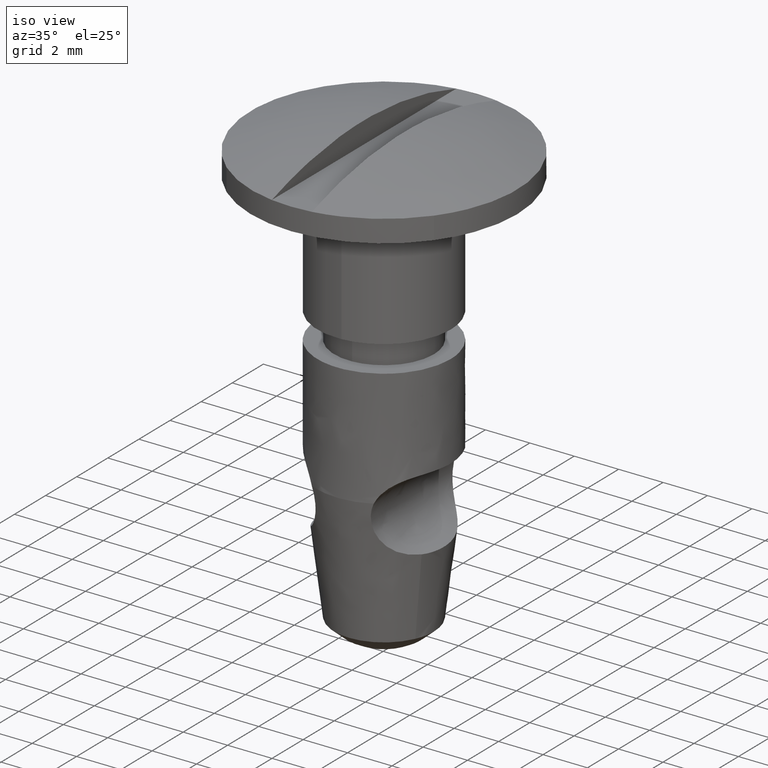
[diagram: clean part render]
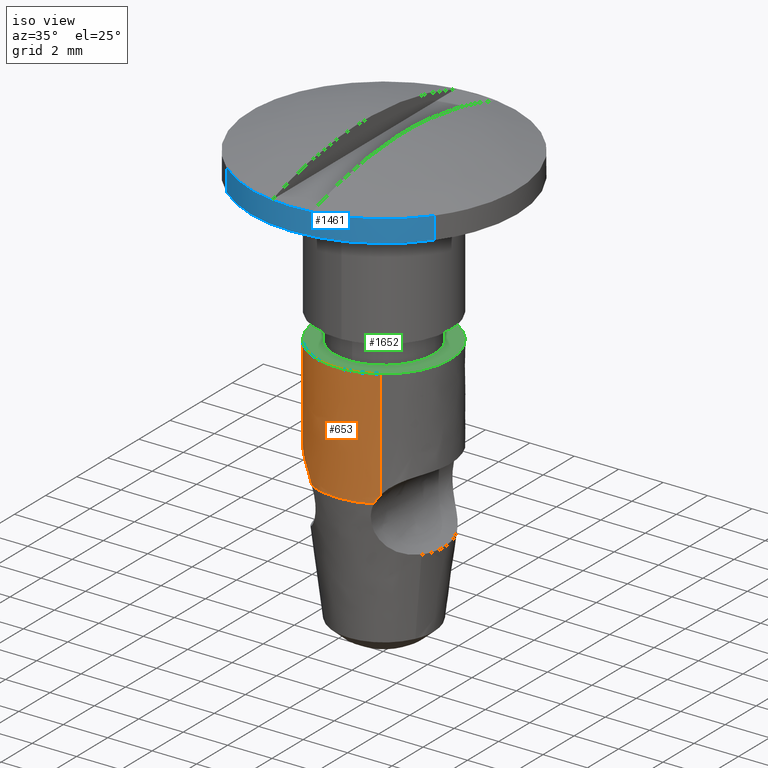
[diagram: same view with three faces highlighted in distinct colors, each labeled with its STEP entity id]
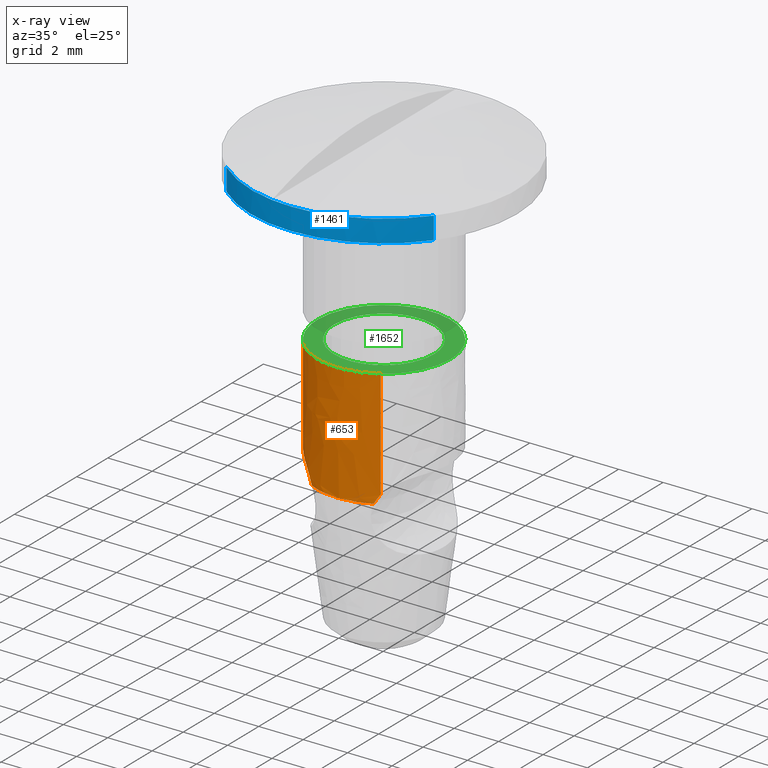
[diagram: x-ray of the same camera — body ghosted, the three highlighted faces saturated]
A machine part, iso view with three faces highlighted in distinct colors.
The next image is the same camera in x-ray (body ghosted, the three faces saturated) — at least one of them is partly hidden behind the body in this view.
Their STEP definitions:

[orange] entity #653 — the highlighted face is a freeform B-spline surface patch.
#265=CARTESIAN_POINT('',(1.436199679755612,-2.655354154192300,7.000002687652030));
#266=VERTEX_POINT('',#265);
#306=CARTESIAN_POINT('',(-1.355999679755594,-2.655354154192300,7.000002687652030));
#307=VERTEX_POINT('',#306);
#308=CARTESIAN_POINT('',(1.436199679755611,-2.655354154192300,7.000002687652030));
#309=CARTESIAN_POINT('',(0.040100000000009,-3.389378394513105,7.000002687652030));
#310=CARTESIAN_POINT('',(-1.355999679755593,-2.655354154192299,7.000002687652030));
#318=(BOUNDED_CURVE()B_SPLINE_CURVE(2,(#308,#309,#310),.UNSPECIFIED.,.F.,.U.)CURVE()GEOMETRIC_REPRESENTATION_ITEM()QUASI_UNIFORM_CURVE()RATIONAL_B_SPLINE_CURVE((1.0,0.885118051397433,1.0))REPRESENTATION_ITEM(''));
#319=EDGE_CURVE('',#266,#307,#318,.T.);
#416=CARTESIAN_POINT('',(-2.490075251433803,-1.611897390353663,12.299999999986580));
#417=VERTEX_POINT('',#416);
#450=CARTESIAN_POINT('',(1.651997383093868,-2.530175256058806,12.300000000000001));
#451=VERTEX_POINT('',#450);
#465=CARTESIAN_POINT('',(1.651998877338846,-2.530174416879400,7.365681103489733));
#466=VERTEX_POINT('',#465);
#467=CARTESIAN_POINT('',(1.651997383093868,-2.530175256058806,12.300000000000001));
#468=CARTESIAN_POINT('',(1.651998877338846,-2.530174416879400,7.365681103489733));
#469=QUASI_UNIFORM_CURVE('',1,(#467,#468),.UNSPECIFIED.,.F.,.U.);
#470=EDGE_CURVE('',#451,#466,#469,.T.);
#532=CARTESIAN_POINT('',(-2.490070795529496,-1.611897240274488,7.985745524091885));
#533=VERTEX_POINT('',#532);
#583=CARTESIAN_POINT('',(-2.490075251433803,-1.611897390353663,12.299999999986580));
#584=CARTESIAN_POINT('',(-2.490070795529496,-1.611897240274488,7.985745524091885));
#585=QUASI_UNIFORM_CURVE('',1,(#583,#584),.UNSPECIFIED.,.F.,.U.);
#586=EDGE_CURVE('',#417,#533,#585,.T.);
#591=CARTESIAN_POINT('',(1.651998825040480,-2.530174337438657,12.432499932808700));
#592=CARTESIAN_POINT('',(-0.878175512398177,-4.142073162479127,12.432499932808701));
#593=CARTESIAN_POINT('',(-2.490074337438648,-1.611898825040470,12.432499932808700));
#594=CARTESIAN_POINT('',(1.651998825040480,-2.530174337438657,6.864190256523112));
#595=CARTESIAN_POINT('',(-0.878175512398177,-4.142073162479127,6.864190256523112));
#596=CARTESIAN_POINT('',(-2.490074337438648,-1.611898825040470,6.864190256523112));
#604=(BOUNDED_SURFACE()B_SPLINE_SURFACE(2,1,((#591,#594),(#592,#595),(#593,#596)),.UNSPECIFIED.,.F.,.F.,.U.)B_SPLINE_SURFACE_WITH_KNOTS((3,3),(2,2),(0.0,4.970562748477139),(0.0,5.568309676285592),.UNSPECIFIED.)GEOMETRIC_REPRESENTATION_ITEM()RATIONAL_B_SPLINE_SURFACE(((1.0,1.0),(0.707106781186548,0.707106781186548),(1.0,1.0)))REPRESENTATION_ITEM('')SURFACE());
#605=CARTESIAN_POINT('',(1.651997383093869,-2.530175256058806,12.299999999999997));
#606=CARTESIAN_POINT('',(0.914519331283239,-3.000000000000000,12.300000000000002));
#607=CARTESIAN_POINT('',(0.040100000000010,-3.0,12.300000000000001));
#608=CARTESIAN_POINT('',(-1.605757466425573,-3.000000000000000,12.299999999999999));
#609=CARTESIAN_POINT('',(-2.490075251433803,-1.611897390353663,12.299999999986580));
#617=(BOUNDED_CURVE()B_SPLINE_CURVE(2,(#605,#606,#607,#608,#609),.UNSPECIFIED.,.F.,.U.)B_SPLINE_CURVE_WITH_KNOTS((3,2,3),(0.658050010308536,0.750000000000000,0.908050009870401),.UNSPECIFIED.)CURVE()GEOMETRIC_REPRESENTATION_ITEM()RATIONAL_B_SPLINE_CURVE((0.863791092824274,0.892273886197614,1.0,0.814832895502241,0.863791092552838))REPRESENTATION_ITEM(''));
#618=EDGE_CURVE('',#451,#417,#617,.T.);
#619=ORIENTED_EDGE('',*,*,#618,.T.);
#620=ORIENTED_EDGE('',*,*,#586,.T.);
#621=CARTESIAN_POINT('',(-2.490070795529496,-1.611897240274488,7.985745524091885));
#622=CARTESIAN_POINT('',(-2.471371589879328,-1.641250297689568,7.980534181014142));
#623=CARTESIAN_POINT('',(-2.452211994885147,-1.670206959317097,7.974860745651576));
#624=CARTESIAN_POINT('',(-2.348348053220212,-1.821408018895397,7.942046337108722));
#625=CARTESIAN_POINT('',(-2.256607853066650,-1.935363493594797,7.906190836284114));
#626=CARTESIAN_POINT('',(-2.110613616525253,-2.092741272855896,7.831077219077868));
#627=CARTESIAN_POINT('',(-2.060348526775664,-2.143086176940654,7.802277595823036));
#628=CARTESIAN_POINT('',(-1.960383156226368,-2.236686726990403,7.737705814627326));
#629=CARTESIAN_POINT('',(-1.910399047278273,-2.280275947934215,7.701815028682393));
#630=CARTESIAN_POINT('',(-1.811400428555783,-2.361365953631257,7.621925709496213));
#631=CARTESIAN_POINT('',(-1.762291066488275,-2.398932964226397,7.577839286375040));
#632=CARTESIAN_POINT('',(-1.666520727694371,-2.467982330041863,7.480809793977452));
#633=CARTESIAN_POINT('',(-1.620887630670567,-2.498745743948338,7.428915247276017));
#634=CARTESIAN_POINT('',(-1.534929450467104,-2.553799283716591,7.318265186110152));
#635=CARTESIAN_POINT('',(-1.494600030259165,-2.578089179289768,7.259512727527675));
#636=CARTESIAN_POINT('',(-1.420157572071164,-2.620972021809444,7.134843194923541));
#637=CARTESIAN_POINT('',(-1.385949933290765,-2.639607399368466,7.068626636454519));
#638=CARTESIAN_POINT('',(-1.355999679755594,-2.655354154192300,7.000002687652030));
#639=B_SPLINE_CURVE_WITH_KNOTS('',3,(#621,#622,#623,#624,#625,#626,#627,#628,#629,#630,#631,#632,#633,#634,#635,#636,#637,#638),.UNSPECIFIED.,.F.,.U.,(4,2,2,2,2,2,2,2,4),(0.735537932687883,0.749999999999999,0.812499999999999,0.843749999999999,0.874999999999999,0.906249999999999,0.937500000000000,0.968750000000000,1.0),.UNSPECIFIED.);
#640=EDGE_CURVE('',#533,#307,#639,.T.);
#641=ORIENTED_EDGE('',*,*,#640,.T.);
#642=ORIENTED_EDGE('',*,*,#319,.F.);
#643=CARTESIAN_POINT('',(1.436199679755606,-2.655354154192303,7.000002687652033));
#644=CARTESIAN_POINT('',(1.494505680786483,-2.624698737008679,7.133597908606518));
#645=CARTESIAN_POINT('',(1.567307545690643,-2.584135832380586,7.255378046345860));
#646=CARTESIAN_POINT('',(1.651998877338846,-2.530174416879400,7.365681103489733));
#647=B_SPLINE_CURVE_WITH_KNOTS('',3,(#643,#644,#645,#646),.UNSPECIFIED.,.F.,.U.,(4,4),(0.0,0.061208604972570),.UNSPECIFIED.);
#648=EDGE_CURVE('',#266,#466,#647,.T.);
#649=ORIENTED_EDGE('',*,*,#648,.T.);
#650=ORIENTED_EDGE('',*,*,#470,.F.);
#651=EDGE_LOOP('',(#619,#620,#641,#642,#649,#650));
#652=FACE_OUTER_BOUND('',#651,.T.);
#653=ADVANCED_FACE('',(#652),#604,.T.);

[blue] entity #1461 — the highlighted face is a freeform B-spline surface patch.
#1238=CARTESIAN_POINT('',(-3.849064807957262,-4.568850741329384,19.000000000000039));
#1239=VERTEX_POINT('',#1238);
#1255=CARTESIAN_POINT('',(-3.849064346135990,-4.568851134447545,20.0));
#1256=VERTEX_POINT('',#1255);
#1257=CARTESIAN_POINT('',(-3.849064346135990,-4.568851134447545,20.0));
#1258=CARTESIAN_POINT('',(-3.849064807957262,-4.568850741329384,19.000000000000039));
#1259=QUASI_UNIFORM_CURVE('',1,(#1257,#1258),.UNSPECIFIED.,.F.,.U.);
#1260=EDGE_CURVE('',#1256,#1239,#1259,.T.);
#1324=CARTESIAN_POINT('',(4.823902582848771,-3.621495940675485,20.0));
#1325=VERTEX_POINT('',#1324);
#1341=CARTESIAN_POINT('',(4.823902228879893,-3.621496408249474,18.999999999999989));
#1342=VERTEX_POINT('',#1341);
#1343=CARTESIAN_POINT('',(4.823902582848771,-3.621495940675485,20.0));
#1344=CARTESIAN_POINT('',(4.823902228879893,-3.621496408249474,18.999999999999989));
#1345=QUASI_UNIFORM_CURVE('',1,(#1343,#1344),.UNSPECIFIED.,.F.,.U.);
#1346=EDGE_CURVE('',#1325,#1342,#1345,.T.);
#1381=CARTESIAN_POINT('',(4.823902153273168,-3.621496508121895,20.024999999999999));
#1382=CARTESIAN_POINT('',(1.202405645151273,-8.405298661395054,20.025000000000009));
#1383=CARTESIAN_POINT('',(-3.581396508121886,-4.783802153273158,20.024999999999999));
#1384=CARTESIAN_POINT('',(-3.718306870488151,-4.680156479110843,20.025000000000006));
#1385=CARTESIAN_POINT('',(-3.849065401338031,-4.568850236223016,20.025000000000006));
#1386=CARTESIAN_POINT('',(4.823902153273168,-3.621496508121895,18.974374999999998));
#1387=CARTESIAN_POINT('',(1.202405645151273,-8.405298661395054,18.974375000000002));
#1388=CARTESIAN_POINT('',(-3.581396508121886,-4.783802153273158,18.974374999999998));
#1389=CARTESIAN_POINT('',(-3.718306870488151,-4.680156479110843,18.974375000000002));
#1390=CARTESIAN_POINT('',(-3.849065401338031,-4.568850236223016,18.974374999999995));
#1398=(BOUNDED_SURFACE()B_SPLINE_SURFACE(2,1,((#1381,#1386),(#1382,#1387),(#1383,#1388),(#1384,#1389),(#1385,#1390)),.UNSPECIFIED.,.F.,.F.,.U.)B_SPLINE_SURFACE_WITH_KNOTS((3,2,3),(2,2),(0.0,9.941125496954280,10.338770516832451),(0.0,1.0),.UNSPECIFIED.)GEOMETRIC_REPRESENTATION_ITEM()RATIONAL_B_SPLINE_SURFACE(((1.0,1.0),(0.707106781186548,0.707106781186548),(1.0,1.0),(0.988284271247462,0.988284271247462),(0.977505800795127,0.977505800795127)))REPRESENTATION_ITEM('')SURFACE());
#1399=CARTESIAN_POINT('',(4.823902228879893,-3.621496408249473,18.999999999999989));
#1400=CARTESIAN_POINT('',(3.023296470379494,-6.000000000000001,19.0));
#1401=CARTESIAN_POINT('',(0.040100000000010,-6.0,19.0));
#1402=CARTESIAN_POINT('',(-2.167801761823784,-6.0,19.000000000000004));
#1403=CARTESIAN_POINT('',(-3.849064807957261,-4.568850741329384,19.000000000000043));
#1411=(BOUNDED_CURVE()B_SPLINE_CURVE(2,(#1399,#1400,#1401,#1402,#1403),.UNSPECIFIED.,.F.,.U.)B_SPLINE_CURVE_WITH_KNOTS((3,2,3),(0.604233580925152,0.750000000000000,0.862894108903073),.UNSPECIFIED.)CURVE()GEOMETRIC_REPRESENTATION_ITEM()RATIONAL_B_SPLINE_CURVE((0.857595262288189,0.829224017289028,1.0,0.867736324233210,0.854926966993914))REPRESENTATION_ITEM(''));
#1412=EDGE_CURVE('',#1342,#1239,#1411,.T.);
#1413=ORIENTED_EDGE('',*,*,#1412,.F.);
#1414=ORIENTED_EDGE('',*,*,#1346,.F.);
#1415=CARTESIAN_POINT('',(0.940100000000000,-5.932115979985561,20.0));
#1416=VERTEX_POINT('',#1415);
#1417=CARTESIAN_POINT('',(4.823902582848771,-3.621495940675485,20.000000000000004));
#1418=CARTESIAN_POINT('',(3.351666585798613,-5.566241486880315,19.999999999999996));
#1419=CARTESIAN_POINT('',(0.940100000000002,-5.932115979985558,20.0));
#1427=(BOUNDED_CURVE()B_SPLINE_CURVE(2,(#1417,#1418,#1419),.UNSPECIFIED.,.F.,.U.)B_SPLINE_CURVE_WITH_KNOTS((3,3),(0.729047944628527,1.0),.UNSPECIFIED.)CURVE()GEOMETRIC_REPRESENTATION_ITEM()RATIONAL_B_SPLINE_CURVE((0.879992644349418,0.869015026695382,1.0))REPRESENTATION_ITEM(''));
#1428=EDGE_CURVE('',#1325,#1416,#1427,.T.);
#1429=ORIENTED_EDGE('',*,*,#1428,.T.);
#1430=CARTESIAN_POINT('',(-0.859900000000000,-5.932115979985561,20.0));
#1431=VERTEX_POINT('',#1430);
#1432=CARTESIAN_POINT('',(0.940100000000002,-5.932115979985558,20.0));
#1433=CARTESIAN_POINT('',(0.040100000000005,-6.068660849090083,20.000000000000004));
#1434=CARTESIAN_POINT('',(-0.859899999999997,-5.932115979985555,20.0));
#1442=(BOUNDED_CURVE()B_SPLINE_CURVE(2,(#1432,#1433,#1434),.UNSPECIFIED.,.F.,.U.)CURVE()GEOMETRIC_REPRESENTATION_ITEM()QUASI_UNIFORM_CURVE()RATIONAL_B_SPLINE_CURVE((1.0,0.988685996664259,1.0))REPRESENTATION_ITEM(''));
#1443=EDGE_CURVE('',#1416,#1431,#1442,.T.);
#1444=ORIENTED_EDGE('',*,*,#1443,.T.);
#1445=CARTESIAN_POINT('',(-0.859899999999997,-5.932115979985555,20.0));
#1446=CARTESIAN_POINT('',(-2.548513000239269,-5.675925489890139,20.000000000000004));
#1447=CARTESIAN_POINT('',(-3.849064346135990,-4.568851134447546,20.0));
#1455=(BOUNDED_CURVE()B_SPLINE_CURVE(2,(#1445,#1446,#1447),.UNSPECIFIED.,.F.,.U.)B_SPLINE_CURVE_WITH_KNOTS((3,3),(0.0,0.197478951576254),.UNSPECIFIED.)CURVE()GEOMETRIC_REPRESENTATION_ITEM()RATIONAL_B_SPLINE_CURVE((1.0,0.904533755372416,0.884477806344742))REPRESENTATION_ITEM(''));
#1456=EDGE_CURVE('',#1431,#1256,#1455,.T.);
#1457=ORIENTED_EDGE('',*,*,#1456,.T.);
#1458=ORIENTED_EDGE('',*,*,#1260,.T.);
#1459=EDGE_LOOP('',(#1413,#1414,#1429,#1444,#1457,#1458));
#1460=FACE_OUTER_BOUND('',#1459,.T.);
#1461=ADVANCED_FACE('',(#1460),#1398,.T.);

[green] entity #1652 — the highlighted face is a freeform B-spline surface patch.
#416=CARTESIAN_POINT('',(-2.490075251433803,-1.611897390353663,12.299999999986580));
#417=VERTEX_POINT('',#416);
#418=CARTESIAN_POINT('',(-2.959899999999990,0.0,12.300000000000001));
#419=VERTEX_POINT('',#418);
#420=CARTESIAN_POINT('',(-2.490075251433803,-1.611897390353663,12.299999999986580));
#421=CARTESIAN_POINT('',(-2.959899999999990,-0.874419335952808,12.299999999999997));
#422=CARTESIAN_POINT('',(-2.959899999999990,0.0,12.300000000000001));
#430=(BOUNDED_CURVE()B_SPLINE_CURVE(2,(#420,#421,#422),.UNSPECIFIED.,.F.,.U.)B_SPLINE_CURVE_WITH_KNOTS((3,3),(0.908050009870401,1.0),.UNSPECIFIED.)CURVE()GEOMETRIC_REPRESENTATION_ITEM()RATIONAL_B_SPLINE_CURVE((0.863791092552838,0.892273885684307,1.0))REPRESENTATION_ITEM(''));
#431=EDGE_CURVE('',#417,#419,#430,.T.);
#433=CARTESIAN_POINT('',(3.040100000000010,0.0,12.300000000000001));
#434=VERTEX_POINT('',#433);
#435=CARTESIAN_POINT('',(-2.959899999999990,0.0,12.300000000000001));
#436=CARTESIAN_POINT('',(-2.959899999999991,3.0,12.300000000000002));
#437=CARTESIAN_POINT('',(0.040100000000010,3.0,12.300000000000001));
#438=CARTESIAN_POINT('',(3.040100000000010,3.0,12.300000000000002));
#439=CARTESIAN_POINT('',(3.040100000000010,0.0,12.300000000000001));
#447=(BOUNDED_CURVE()B_SPLINE_CURVE(2,(#435,#436,#437,#438,#439),.UNSPECIFIED.,.F.,.U.)B_SPLINE_CURVE_WITH_KNOTS((3,2,3),(0.0,0.250000000000000,0.500000000000000),.UNSPECIFIED.)CURVE()GEOMETRIC_REPRESENTATION_ITEM()RATIONAL_B_SPLINE_CURVE((1.0,0.707106781186548,1.0,0.707106781186548,1.0))REPRESENTATION_ITEM(''));
#448=EDGE_CURVE('',#419,#434,#447,.T.);
#450=CARTESIAN_POINT('',(1.651997383093868,-2.530175256058806,12.300000000000001));
#451=VERTEX_POINT('',#450);
#452=CARTESIAN_POINT('',(3.040100000000010,0.0,12.300000000000001));
#453=CARTESIAN_POINT('',(3.040100000000010,-1.645857472024924,12.300000000000004));
#454=CARTESIAN_POINT('',(1.651997383093869,-2.530175256058806,12.299999999999997));
#462=(BOUNDED_CURVE()B_SPLINE_CURVE(2,(#452,#453,#454),.UNSPECIFIED.,.F.,.U.)B_SPLINE_CURVE_WITH_KNOTS((3,3),(0.500000000000000,0.658050010308536),.UNSPECIFIED.)CURVE()GEOMETRIC_REPRESENTATION_ITEM()RATIONAL_B_SPLINE_CURVE((1.0,0.814832894988934,0.863791092824274))REPRESENTATION_ITEM(''));
#463=EDGE_CURVE('',#434,#451,#462,.T.);
#605=CARTESIAN_POINT('',(1.651997383093869,-2.530175256058806,12.299999999999997));
#606=CARTESIAN_POINT('',(0.914519331283239,-3.000000000000000,12.300000000000002));
#607=CARTESIAN_POINT('',(0.040100000000010,-3.0,12.300000000000001));
#608=CARTESIAN_POINT('',(-1.605757466425573,-3.000000000000000,12.299999999999999));
#609=CARTESIAN_POINT('',(-2.490075251433803,-1.611897390353663,12.299999999986580));
#617=(BOUNDED_CURVE()B_SPLINE_CURVE(2,(#605,#606,#607,#608,#609),.UNSPECIFIED.,.F.,.U.)B_SPLINE_CURVE_WITH_KNOTS((3,2,3),(0.658050010308536,0.750000000000000,0.908050009870401),.UNSPECIFIED.)CURVE()GEOMETRIC_REPRESENTATION_ITEM()RATIONAL_B_SPLINE_CURVE((0.863791092824274,0.892273886197614,1.0,0.814832895502241,0.863791092552838))REPRESENTATION_ITEM(''));
#618=EDGE_CURVE('',#451,#417,#617,.T.);
#676=CARTESIAN_POINT('',(-0.225477027995371,2.234271434316148,12.300000000000001));
#677=VERTEX_POINT('',#676);
#678=CARTESIAN_POINT('',(2.290100000000009,0.0,12.300000000000001));
#679=VERTEX_POINT('',#678);
#680=CARTESIAN_POINT('',(-0.225477027995371,2.234271434316148,12.299999999999997));
#681=CARTESIAN_POINT('',(-0.093154269234649,2.250000000000000,12.299999999999997));
#682=CARTESIAN_POINT('',(0.040100000000010,2.250000000000000,12.300000000000001));
#683=CARTESIAN_POINT('',(2.290100000000009,2.250000000000000,12.300000000000002));
#684=CARTESIAN_POINT('',(2.290100000000009,0.0,12.300000000000001));
#692=(BOUNDED_CURVE()B_SPLINE_CURVE(2,(#680,#681,#682,#683,#684),.UNSPECIFIED.,.F.,.U.)B_SPLINE_CURVE_WITH_KNOTS((3,2,3),(0.229562473512970,0.250000000000000,0.500000000000000),.UNSPECIFIED.)CURVE()GEOMETRIC_REPRESENTATION_ITEM()RATIONAL_B_SPLINE_CURVE((0.956026754182645,0.976055948330515,1.0,0.707106781186547,1.0))REPRESENTATION_ITEM(''));
#693=EDGE_CURVE('',#677,#679,#692,.T.);
#734=CARTESIAN_POINT('',(0.177459213975843,-2.245803296447830,12.300000000000001));
#735=VERTEX_POINT('',#734);
#741=CARTESIAN_POINT('',(2.290100000000009,0.0,12.300000000000001));
#742=CARTESIAN_POINT('',(2.290100000000008,-2.116588650495502,12.300000000000002));
#743=CARTESIAN_POINT('',(0.177459213975843,-2.245803296447830,12.299999999999997));
#751=(BOUNDED_CURVE()B_SPLINE_CURVE(2,(#741,#742,#743),.UNSPECIFIED.,.F.,.U.)B_SPLINE_CURVE_WITH_KNOTS((3,3),(0.500000000000000,0.739332962238525),.UNSPECIFIED.)CURVE()GEOMETRIC_REPRESENTATION_ITEM()RATIONAL_B_SPLINE_CURVE((1.0,0.719603993287199,0.976072041665823))REPRESENTATION_ITEM(''));
#752=EDGE_CURVE('',#679,#735,#751,.T.);
#775=CARTESIAN_POINT('',(-2.209899999999990,0.0,12.300000000000001));
#776=VERTEX_POINT('',#775);
#777=CARTESIAN_POINT('',(-2.209899999999990,0.0,12.300000000000001));
#778=CARTESIAN_POINT('',(-2.209899999999991,1.998392683358738,12.300000000000002));
#779=CARTESIAN_POINT('',(-0.225477027995371,2.234271434316148,12.299999999999997));
#787=(BOUNDED_CURVE()B_SPLINE_CURVE(2,(#777,#778,#779),.UNSPECIFIED.,.F.,.U.)B_SPLINE_CURVE_WITH_KNOTS((3,3),(0.0,0.229562473512970),.UNSPECIFIED.)CURVE()GEOMETRIC_REPRESENTATION_ITEM()RATIONAL_B_SPLINE_CURVE((1.0,0.731050832856033,0.956026754182645))REPRESENTATION_ITEM(''));
#788=EDGE_CURVE('',#776,#677,#787,.T.);
#790=CARTESIAN_POINT('',(0.177459213975843,-2.245803296447830,12.299999999999997));
#791=CARTESIAN_POINT('',(0.108843717444303,-2.250000000000001,12.299999999999997));
#792=CARTESIAN_POINT('',(0.040100000000010,-2.250000000000000,12.300000000000001));
#793=CARTESIAN_POINT('',(-2.209899999999990,-2.250000000000000,12.300000000000002));
#794=CARTESIAN_POINT('',(-2.209899999999990,0.0,12.300000000000001));
#802=(BOUNDED_CURVE()B_SPLINE_CURVE(2,(#790,#791,#792,#793,#794),.UNSPECIFIED.,.F.,.U.)B_SPLINE_CURVE_WITH_KNOTS((3,2,3),(0.739332962238525,0.750000000000000,1.0),.UNSPECIFIED.)CURVE()GEOMETRIC_REPRESENTATION_ITEM()RATIONAL_B_SPLINE_CURVE((0.976072041665823,0.987502787899348,1.0,0.707106781186547,1.0))REPRESENTATION_ITEM(''));
#803=EDGE_CURVE('',#735,#776,#802,.T.);
#1635=CARTESIAN_POINT('',(3.339800079582045,-3.299580075198390,12.300000000000001));
#1636=CARTESIAN_POINT('',(-3.259599704072763,-3.299580075198389,12.300000000000001));
#1637=CARTESIAN_POINT('',(3.339800079582045,3.299694444590784,12.300000000000001));
#1638=CARTESIAN_POINT('',(-3.259599704072763,3.299694444590784,12.300000000000001));
#1639=B_SPLINE_SURFACE_WITH_KNOTS('',1,1,((#1635,#1637),(#1636,#1638)),.UNSPECIFIED.,.F.,.F.,.U.,(2,2),(2,2),(0.0,6.599399783654808),(0.0,6.599274519789174),.UNSPECIFIED.);
#1640=ORIENTED_EDGE('',*,*,#431,.F.);
#1641=ORIENTED_EDGE('',*,*,#618,.F.);
#1642=ORIENTED_EDGE('',*,*,#463,.F.);
#1643=ORIENTED_EDGE('',*,*,#448,.F.);
#1644=EDGE_LOOP('',(#1640,#1641,#1642,#1643));
#1645=FACE_OUTER_BOUND('',#1644,.T.);
#1646=ORIENTED_EDGE('',*,*,#752,.T.);
#1647=ORIENTED_EDGE('',*,*,#803,.T.);
#1648=ORIENTED_EDGE('',*,*,#788,.T.);
#1649=ORIENTED_EDGE('',*,*,#693,.T.);
#1650=EDGE_LOOP('',(#1646,#1647,#1648,#1649));
#1651=FACE_BOUND('',#1650,.T.);
#1652=ADVANCED_FACE('',(#1645,#1651),#1639,.F.);